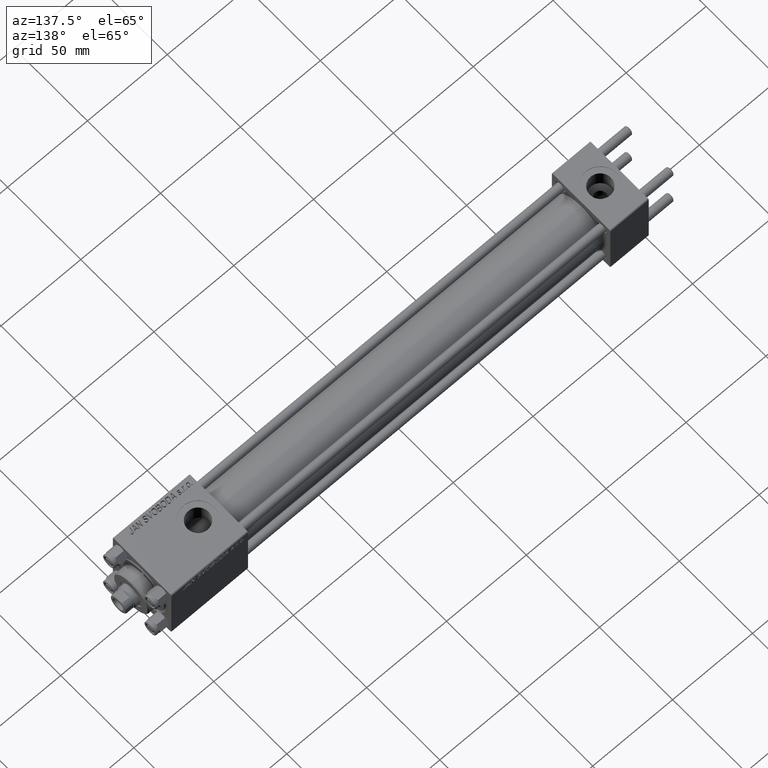
[diagram: clean part render]
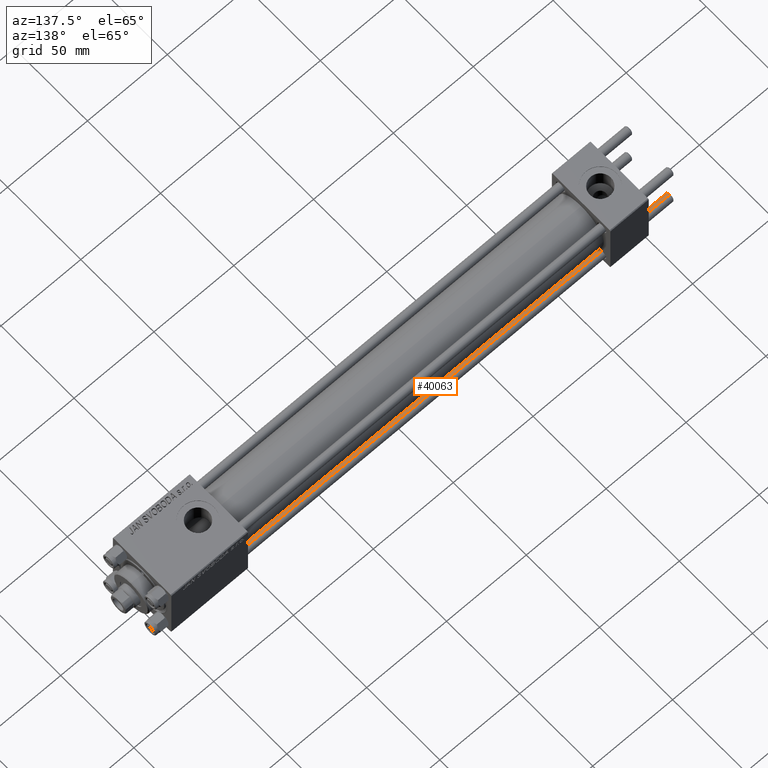
[diagram: same view with one face highlighted and labeled with its STEP entity id]
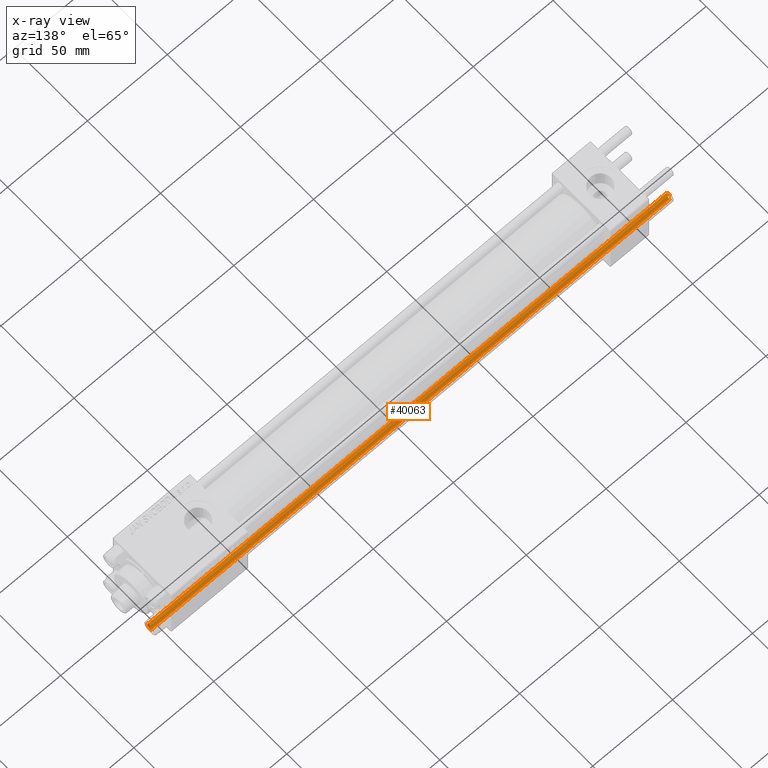
[diagram: x-ray of the same camera — body ghosted, the highlighted face saturated]
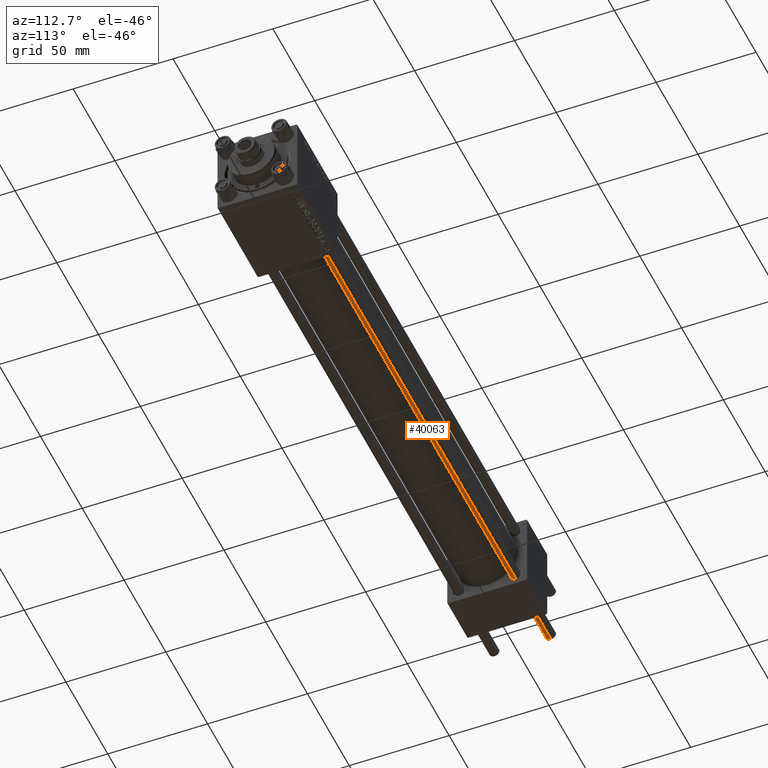
[diagram: same view with one face highlighted and labeled with its STEP entity id]
A machine part, auxiliary view. The second image highlights one B-rep face of the part: STEP entity #40063.
The next image is the same camera in x-ray: the body ghosted, the highlighted face saturated — about 0% of this face is hidden behind the body in this view.
A second angle (auxiliary view) of the same face is appended — the face is thin or edge-on in the first view.
In plain terms, the highlighted cylindrical surface (edge-blend (fillet) strip) has radius 2.5 mm, axis along (1, 0, -0).
Its self-contained STEP definition (entity closure, byte-faithful):
#498 = DIRECTION ( 'NONE',  ( 0.000000000000000000, 0.000000000000000000, -1.000000000000000000 ) ) ;
#3382 = LINE ( 'NONE', #25626, #12634 ) ;
#3417 = CYLINDRICAL_SURFACE ( 'NONE', #23273, 2.500000000000000000 ) ;
#5270 = EDGE_CURVE ( 'NONE', #29195, #15392, #10454, .T. ) ;
#7786 = VECTOR ( 'NONE', #27686, 1000.000000000000000 ) ;
#9298 = CIRCLE ( 'NONE', #27102, 2.500000000000000000 ) ;
#9900 = ORIENTED_EDGE ( 'NONE', *, *, #35606, .T. ) ;
#10454 = CIRCLE ( 'NONE', #35434, 2.500000000000000000 ) ;
#12634 = VECTOR ( 'NONE', #22839, 1000.000000000000000 ) ;
#13661 = CARTESIAN_POINT ( 'NONE',  ( -2.500000000000000000, 0.000000000000000000, 325.5000000000000000 ) ) ;
#15034 = DIRECTION ( 'NONE',  ( -0.000000000000000000, -0.000000000000000000, -1.000000000000000000 ) ) ;
#15392 = VERTEX_POINT ( 'NONE', #27489 ) ;
#15899 = CARTESIAN_POINT ( 'NONE',  ( 0.000000000000000000, 0.000000000000000000, 325.5000000000000000 ) ) ;
#18828 = CARTESIAN_POINT ( 'NONE',  ( 0.000000000000000000, 0.000000000000000000, 326.0000000000000000 ) ) ;
#19316 = FACE_OUTER_BOUND ( 'NONE', #40846, .T. ) ;
#20180 = ORIENTED_EDGE ( 'NONE', *, *, #32597, .T. ) ;
#22617 = DIRECTION ( 'NONE',  ( -1.000000000000000000, 0.000000000000000000, 0.000000000000000000 ) ) ;
#22839 = DIRECTION ( 'NONE',  ( -0.000000000000000000, -0.000000000000000000, -1.000000000000000000 ) ) ;
#23273 = AXIS2_PLACEMENT_3D ( 'NONE', #18828, #15034, #22617 ) ;
#24627 = DIRECTION ( 'NONE',  ( -0.000000000000000000, -0.000000000000000000, 1.000000000000000000 ) ) ;
#25626 = CARTESIAN_POINT ( 'NONE',  ( 2.500000000000000000, 3.061616997868383141E-16, 326.0000000000000000 ) ) ;
#26496 = EDGE_CURVE ( 'NONE', #43225, #15392, #3382, .T. ) ;
#27102 = AXIS2_PLACEMENT_3D ( 'NONE', #15899, #498, #31313 ) ;
#27489 = CARTESIAN_POINT ( 'NONE',  ( 2.500000000000000000, 3.061616997868383141E-16, 0.4999999999999449329 ) ) ;
#27686 = DIRECTION ( 'NONE',  ( -0.000000000000000000, -0.000000000000000000, -1.000000000000000000 ) ) ;
#28334 = ORIENTED_EDGE ( 'NONE', *, *, #5270, .T. ) ;
#28661 = DIRECTION ( 'NONE',  ( 1.000000000000000000, 0.000000000000000000, 0.000000000000000000 ) ) ;
#29195 = VERTEX_POINT ( 'NONE', #30495 ) ;
#29410 = CARTESIAN_POINT ( 'NONE',  ( 0.000000000000000000, 0.000000000000000000, 0.4999999999999449329 ) ) ;
#30495 = CARTESIAN_POINT ( 'NONE',  ( -2.500000000000000000, 0.000000000000000000, 0.4999999999999449329 ) ) ;
#31313 = DIRECTION ( 'NONE',  ( 1.000000000000000000, 0.000000000000000000, 0.000000000000000000 ) ) ;
#31482 = LINE ( 'NONE', #39304, #7786 ) ;
#32597 = EDGE_CURVE ( 'NONE', #43225, #37084, #9298, .T. ) ;
#35434 = AXIS2_PLACEMENT_3D ( 'NONE', #29410, #24627, #28661 ) ;
#35606 = EDGE_CURVE ( 'NONE', #37084, #29195, #31482, .T. ) ;
#37084 = VERTEX_POINT ( 'NONE', #13661 ) ;
#39304 = CARTESIAN_POINT ( 'NONE',  ( -2.500000000000000000, 0.000000000000000000, 326.0000000000000000 ) ) ;
#39935 = ORIENTED_EDGE ( 'NONE', *, *, #26496, .F. ) ;
#40063 = ADVANCED_FACE ( 'NONE', ( #19316 ), #3417, .T. ) ;
#40846 = EDGE_LOOP ( 'NONE', ( #39935, #20180, #9900, #28334 ) ) ;
#43225 = VERTEX_POINT ( 'NONE', #48660 ) ;
#48660 = CARTESIAN_POINT ( 'NONE',  ( 2.500000000000000000, 3.061616997868383141E-16, 325.5000000000000000 ) ) ;